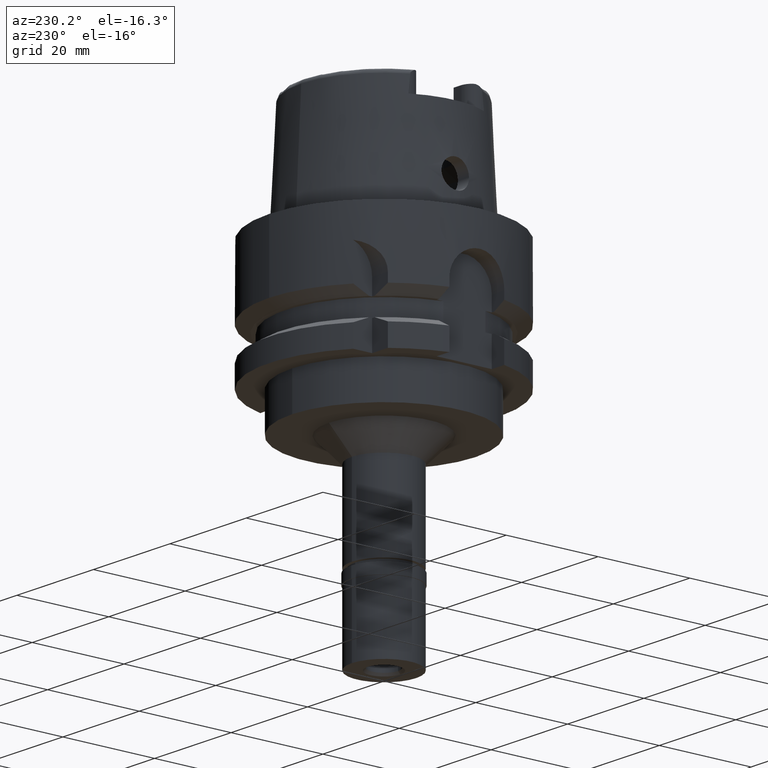
[diagram: clean part render]
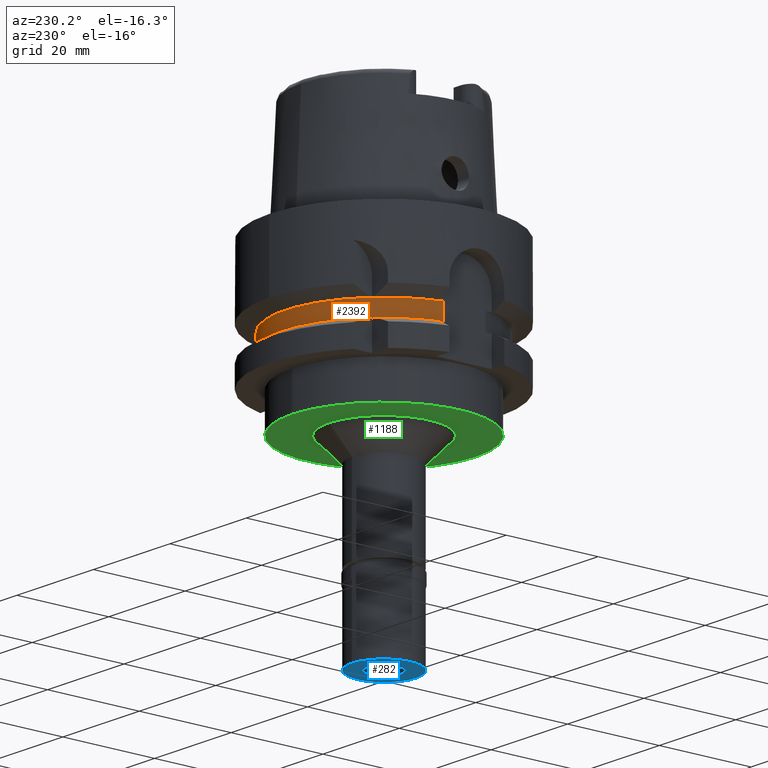
[diagram: same view with three faces highlighted in distinct colors, each labeled with its STEP entity id]
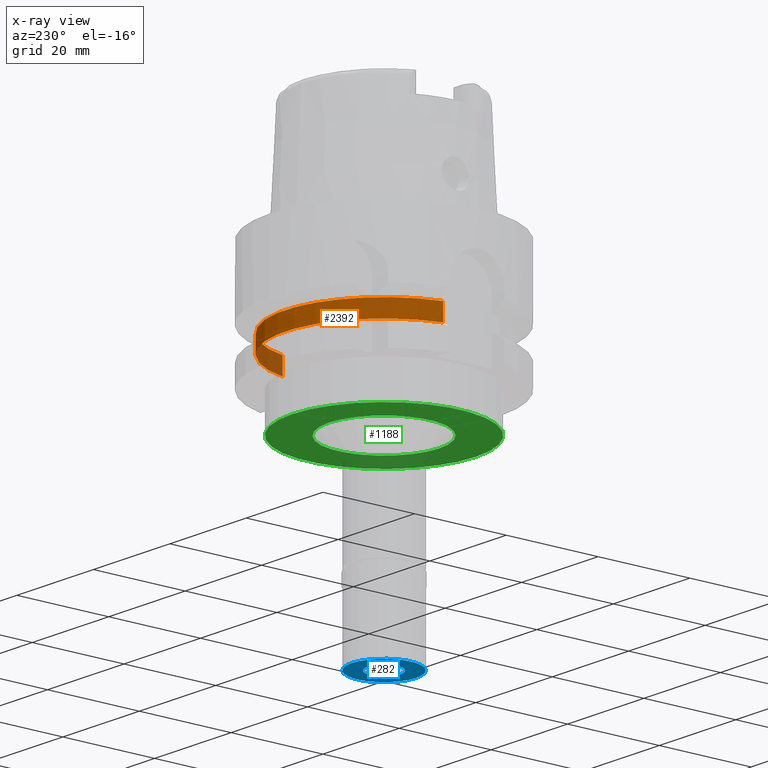
[diagram: x-ray of the same camera — body ghosted, the three highlighted faces saturated]
A machine part, auxiliary view with three faces highlighted in distinct colors.
The next image is the same camera in x-ray (body ghosted, the three faces saturated) — at least one of them is partly hidden behind the body in this view.
Their STEP definitions:

[orange] entity #2392 — the highlighted cylindrical surface (partial cylindrical patch) has radius 21.5 mm, axis along (0, 0, 1).
#56 = DIRECTION ( 'NONE',  ( 0.0000000000000000000, 0.0000000000000000000, -1.000000000000000000 ) ) ;
#74 = CARTESIAN_POINT ( 'NONE',  ( -21.00000000000000000, 4.609772228645999448, -16.12500000000000000 ) ) ;
#259 = LINE ( 'NONE', #4375, #3495 ) ;
#262 = CIRCLE ( 'NONE', #588, 21.50000000000000000 ) ;
#316 = ORIENTED_EDGE ( 'NONE', *, *, #819, .F. ) ;
#320 = EDGE_CURVE ( 'NONE', #3637, #3442, #259, .T. ) ;
#359 = EDGE_CURVE ( 'NONE', #2706, #3442, #3413, .T. ) ;
#588 = AXIS2_PLACEMENT_3D ( 'NONE', #658, #1499, #2160 ) ;
#642 = DIRECTION ( 'NONE',  ( 0.0000000000000000000, 0.0000000000000000000, 1.000000000000000000 ) ) ;
#658 = CARTESIAN_POINT ( 'NONE',  ( 0.0000000000000000000, 0.0000000000000000000, -19.87500000000000000 ) ) ;
#720 = CARTESIAN_POINT ( 'NONE',  ( -21.00000000000000000, 4.609772228645999448, -16.12500000000000000 ) ) ;
#731 = VECTOR ( 'NONE', #56, 1000.000000000000000 ) ;
#749 = CARTESIAN_POINT ( 'NONE',  ( 21.00000000000000000, 4.609772228645999448, -16.12500000000000000 ) ) ;
#819 = EDGE_CURVE ( 'NONE', #2706, #1294, #2611, .T. ) ;
#941 = CYLINDRICAL_SURFACE ( 'NONE', #2729, 21.50000000000000000 ) ;
#1044 = ORIENTED_EDGE ( 'NONE', *, *, #359, .T. ) ;
#1089 = CARTESIAN_POINT ( 'NONE',  ( -21.00000000000000000, 4.609772228645999448, -19.87500000000000000 ) ) ;
#1222 = ORIENTED_EDGE ( 'NONE', *, *, #320, .F. ) ;
#1294 = VERTEX_POINT ( 'NONE', #1089 ) ;
#1499 = DIRECTION ( 'NONE',  ( 0.0000000000000000000, 0.0000000000000000000, 1.000000000000000000 ) ) ;
#1707 = DIRECTION ( 'NONE',  ( 0.0000000000000000000, 1.000000000000000000, 0.0000000000000000000 ) ) ;
#1716 = EDGE_CURVE ( 'NONE', #3637, #1294, #262, .T. ) ;
#1922 = AXIS2_PLACEMENT_3D ( 'NONE', #3633, #2534, #2511 ) ;
#2071 = CARTESIAN_POINT ( 'NONE',  ( 0.0000000000000000000, 0.0000000000000000000, -75.80000000000001137 ) ) ;
#2160 = DIRECTION ( 'NONE',  ( 0.0000000000000000000, 1.000000000000000000, 0.0000000000000000000 ) ) ;
#2392 = ADVANCED_FACE ( 'NONE', ( #3299 ), #941, .T. ) ;
#2497 = ORIENTED_EDGE ( 'NONE', *, *, #1716, .T. ) ;
#2511 = DIRECTION ( 'NONE',  ( -0.9767441860465149173, 0.2144080106347034664, 0.0000000000000000000 ) ) ;
#2534 = DIRECTION ( 'NONE',  ( 0.0000000000000000000, 0.0000000000000000000, -1.000000000000000000 ) ) ;
#2611 = LINE ( 'NONE', #720, #731 ) ;
#2706 = VERTEX_POINT ( 'NONE', #74 ) ;
#2729 = AXIS2_PLACEMENT_3D ( 'NONE', #2071, #642, #1707 ) ;
#2903 = DIRECTION ( 'NONE',  ( 0.0000000000000000000, 0.0000000000000000000, 1.000000000000000000 ) ) ;
#3290 = CARTESIAN_POINT ( 'NONE',  ( 21.00000000000000000, 4.609772228645999448, -19.87500000000000000 ) ) ;
#3299 = FACE_OUTER_BOUND ( 'NONE', #4559, .T. ) ;
#3413 = CIRCLE ( 'NONE', #1922, 21.50000000000000000 ) ;
#3442 = VERTEX_POINT ( 'NONE', #749 ) ;
#3495 = VECTOR ( 'NONE', #2903, 1000.000000000000000 ) ;
#3633 = CARTESIAN_POINT ( 'NONE',  ( 0.0000000000000000000, 0.0000000000000000000, -16.12500000000000000 ) ) ;
#3637 = VERTEX_POINT ( 'NONE', #3290 ) ;
#4375 = CARTESIAN_POINT ( 'NONE',  ( 21.00000000000000000, 4.609772228645999448, -19.87500000000000000 ) ) ;
#4559 = EDGE_LOOP ( 'NONE', ( #1044, #1222, #2497, #316 ) ) ;

[blue] entity #282 — the highlighted planar face has unit normal (0, 0, 1).
#190 = FACE_OUTER_BOUND ( 'NONE', #3410, .T. ) ;
#205 = CARTESIAN_POINT ( 'NONE',  ( 0.0000000000000000000, 3.550000000000000266, -17.00000000000000000 ) ) ;
#236 = DIRECTION ( 'NONE',  ( 1.000000000000000000, 0.0000000000000000000, 0.0000000000000000000 ) ) ;
#242 = VERTEX_POINT ( 'NONE', #1030 ) ;
#282 = ADVANCED_FACE ( 'NONE', ( #190, #2447 ), #3975, .F. ) ;
#528 = CIRCLE ( 'NONE', #2421, 3.550000000000000266 ) ;
#812 = DIRECTION ( 'NONE',  ( 0.0000000000000000000, -1.000000000000000000, 0.0000000000000000000 ) ) ;
#829 = DIRECTION ( 'NONE',  ( 0.0000000000000000000, 1.000000000000000000, 0.0000000000000000000 ) ) ;
#836 = DIRECTION ( 'NONE',  ( 0.0000000000000000000, -1.000000000000000000, 0.0000000000000000000 ) ) ;
#1030 = CARTESIAN_POINT ( 'NONE',  ( 0.0000000000000000000, 7.000000000000000000, -17.00000000000000000 ) ) ;
#1157 = EDGE_LOOP ( 'NONE', ( #1347, #4867 ) ) ;
#1220 = CARTESIAN_POINT ( 'NONE',  ( 0.0000000000000000000, -3.550000000000000266, -17.00000000000000000 ) ) ;
#1347 = ORIENTED_EDGE ( 'NONE', *, *, #2919, .F. ) ;
#1448 = CARTESIAN_POINT ( 'NONE',  ( 0.0000000000000000000, -7.000000000000000000, -17.00000000000000000 ) ) ;
#1821 = DIRECTION ( 'NONE',  ( 0.0000000000000000000, 1.000000000000000000, 0.0000000000000000000 ) ) ;
#1947 = VERTEX_POINT ( 'NONE', #205 ) ;
#2046 = DIRECTION ( 'NONE',  ( 0.0000000000000000000, 0.0000000000000000000, 1.000000000000000000 ) ) ;
#2068 = CARTESIAN_POINT ( 'NONE',  ( 0.0000000000000000000, 0.0000000000000000000, -17.00000000000000000 ) ) ;
#2211 = ORIENTED_EDGE ( 'NONE', *, *, #2823, .F. ) ;
#2231 = AXIS2_PLACEMENT_3D ( 'NONE', #2068, #3575, #236 ) ;
#2303 = VERTEX_POINT ( 'NONE', #1220 ) ;
#2376 = CARTESIAN_POINT ( 'NONE',  ( 0.0000000000000000000, 0.0000000000000000000, -17.00000000000000000 ) ) ;
#2421 = AXIS2_PLACEMENT_3D ( 'NONE', #3365, #2965, #1821 ) ;
#2447 = FACE_BOUND ( 'NONE', #1157, .T. ) ;
#2655 = DIRECTION ( 'NONE',  ( 0.0000000000000000000, 0.0000000000000000000, -1.000000000000000000 ) ) ;
#2740 = CIRCLE ( 'NONE', #4484, 7.000000000000000000 ) ;
#2823 = EDGE_CURVE ( 'NONE', #2927, #242, #4780, .T. ) ;
#2919 = EDGE_CURVE ( 'NONE', #1947, #2303, #528, .T. ) ;
#2927 = VERTEX_POINT ( 'NONE', #1448 ) ;
#2965 = DIRECTION ( 'NONE',  ( 0.0000000000000000000, 0.0000000000000000000, -1.000000000000000000 ) ) ;
#3365 = CARTESIAN_POINT ( 'NONE',  ( 0.0000000000000000000, 0.0000000000000000000, -17.00000000000000000 ) ) ;
#3410 = EDGE_LOOP ( 'NONE', ( #4447, #2211 ) ) ;
#3575 = DIRECTION ( 'NONE',  ( 0.0000000000000000000, 0.0000000000000000000, 1.000000000000000000 ) ) ;
#3783 = CIRCLE ( 'NONE', #4655, 3.550000000000000266 ) ;
#3845 = DIRECTION ( 'NONE',  ( 0.0000000000000000000, 0.0000000000000000000, 1.000000000000000000 ) ) ;
#3963 = EDGE_CURVE ( 'NONE', #242, #2927, #2740, .T. ) ;
#3975 = PLANE ( 'NONE',  #2231 ) ;
#4204 = CARTESIAN_POINT ( 'NONE',  ( 0.0000000000000000000, 0.0000000000000000000, -17.00000000000000000 ) ) ;
#4221 = CARTESIAN_POINT ( 'NONE',  ( 0.0000000000000000000, 0.0000000000000000000, -17.00000000000000000 ) ) ;
#4447 = ORIENTED_EDGE ( 'NONE', *, *, #3963, .F. ) ;
#4467 = AXIS2_PLACEMENT_3D ( 'NONE', #2376, #2046, #836 ) ;
#4484 = AXIS2_PLACEMENT_3D ( 'NONE', #4221, #3845, #829 ) ;
#4655 = AXIS2_PLACEMENT_3D ( 'NONE', #4204, #2655, #812 ) ;
#4739 = EDGE_CURVE ( 'NONE', #2303, #1947, #3783, .T. ) ;
#4780 = CIRCLE ( 'NONE', #4467, 7.000000000000000000 ) ;
#4867 = ORIENTED_EDGE ( 'NONE', *, *, #4739, .F. ) ;

[green] entity #1188 — the highlighted planar face has unit normal (0, 0, 1).
#6 = EDGE_CURVE ( 'NONE', #3527, #438, #4682, .T. ) ;
#34 = AXIS2_PLACEMENT_3D ( 'NONE', #2551, #1866, #1075 ) ;
#100 = DIRECTION ( 'NONE',  ( 0.0000000000000000000, -1.000000000000000000, 0.0000000000000000000 ) ) ;
#105 = ORIENTED_EDGE ( 'NONE', *, *, #6, .F. ) ;
#108 = AXIS2_PLACEMENT_3D ( 'NONE', #650, #4013, #2153 ) ;
#145 = CARTESIAN_POINT ( 'NONE',  ( 0.0000000000000000000, 0.0000000000000000000, -34.00000000000000000 ) ) ;
#155 = EDGE_CURVE ( 'NONE', #2669, #3519, #328, .T. ) ;
#225 = DIRECTION ( 'NONE',  ( 1.000000000000000000, 0.0000000000000000000, 0.0000000000000000000 ) ) ;
#313 = CARTESIAN_POINT ( 'NONE',  ( 0.0000000000000000000, -12.00000000000000000, -34.00000000000000000 ) ) ;
#328 = CIRCLE ( 'NONE', #2699, 12.00000000000000000 ) ;
#371 = ORIENTED_EDGE ( 'NONE', *, *, #155, .F. ) ;
#438 = VERTEX_POINT ( 'NONE', #4547 ) ;
#561 = CARTESIAN_POINT ( 'NONE',  ( 0.0000000000000000000, 20.00000000000000000, -34.00000000000000000 ) ) ;
#650 = CARTESIAN_POINT ( 'NONE',  ( 0.0000000000000000000, 0.0000000000000000000, -34.00000000000000000 ) ) ;
#758 = EDGE_CURVE ( 'NONE', #438, #3527, #1215, .T. ) ;
#872 = ORIENTED_EDGE ( 'NONE', *, *, #758, .F. ) ;
#1075 = DIRECTION ( 'NONE',  ( 0.0000000000000000000, 1.000000000000000000, 0.0000000000000000000 ) ) ;
#1096 = ORIENTED_EDGE ( 'NONE', *, *, #1676, .F. ) ;
#1188 = ADVANCED_FACE ( 'NONE', ( #3663, #3258 ), #2099, .F. ) ;
#1215 = CIRCLE ( 'NONE', #108, 20.00000000000000000 ) ;
#1507 = EDGE_LOOP ( 'NONE', ( #105, #872 ) ) ;
#1676 = EDGE_CURVE ( 'NONE', #3519, #2669, #4538, .T. ) ;
#1866 = DIRECTION ( 'NONE',  ( 0.0000000000000000000, 0.0000000000000000000, -1.000000000000000000 ) ) ;
#2099 = PLANE ( 'NONE',  #4298 ) ;
#2153 = DIRECTION ( 'NONE',  ( 0.0000000000000000000, -1.000000000000000000, 0.0000000000000000000 ) ) ;
#2174 = DIRECTION ( 'NONE',  ( 0.0000000000000000000, 0.0000000000000000000, 1.000000000000000000 ) ) ;
#2304 = DIRECTION ( 'NONE',  ( 0.0000000000000000000, 0.0000000000000000000, 1.000000000000000000 ) ) ;
#2377 = DIRECTION ( 'NONE',  ( 0.0000000000000000000, 0.0000000000000000000, -1.000000000000000000 ) ) ;
#2428 = EDGE_LOOP ( 'NONE', ( #1096, #371 ) ) ;
#2551 = CARTESIAN_POINT ( 'NONE',  ( 0.0000000000000000000, 0.0000000000000000000, -34.00000000000000000 ) ) ;
#2669 = VERTEX_POINT ( 'NONE', #313 ) ;
#2699 = AXIS2_PLACEMENT_3D ( 'NONE', #145, #2377, #100 ) ;
#3096 = AXIS2_PLACEMENT_3D ( 'NONE', #4838, #2304, #3809 ) ;
#3199 = CARTESIAN_POINT ( 'NONE',  ( 0.0000000000000000000, 12.00000000000000000, -34.00000000000000000 ) ) ;
#3258 = FACE_BOUND ( 'NONE', #2428, .T. ) ;
#3519 = VERTEX_POINT ( 'NONE', #3199 ) ;
#3527 = VERTEX_POINT ( 'NONE', #561 ) ;
#3612 = CARTESIAN_POINT ( 'NONE',  ( 0.0000000000000000000, 0.0000000000000000000, -34.00000000000000000 ) ) ;
#3663 = FACE_OUTER_BOUND ( 'NONE', #1507, .T. ) ;
#3809 = DIRECTION ( 'NONE',  ( 0.0000000000000000000, 1.000000000000000000, 0.0000000000000000000 ) ) ;
#4013 = DIRECTION ( 'NONE',  ( 0.0000000000000000000, 0.0000000000000000000, 1.000000000000000000 ) ) ;
#4298 = AXIS2_PLACEMENT_3D ( 'NONE', #3612, #2174, #225 ) ;
#4538 = CIRCLE ( 'NONE', #34, 12.00000000000000000 ) ;
#4547 = CARTESIAN_POINT ( 'NONE',  ( 0.0000000000000000000, -20.00000000000000000, -34.00000000000000000 ) ) ;
#4682 = CIRCLE ( 'NONE', #3096, 20.00000000000000000 ) ;
#4838 = CARTESIAN_POINT ( 'NONE',  ( 0.0000000000000000000, 0.0000000000000000000, -34.00000000000000000 ) ) ;